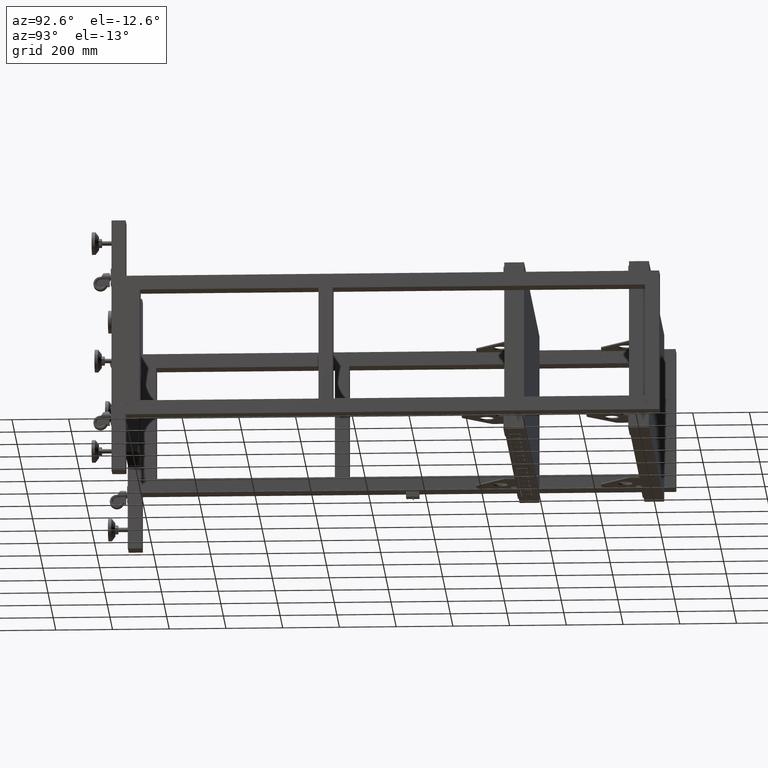
[diagram: clean part render]
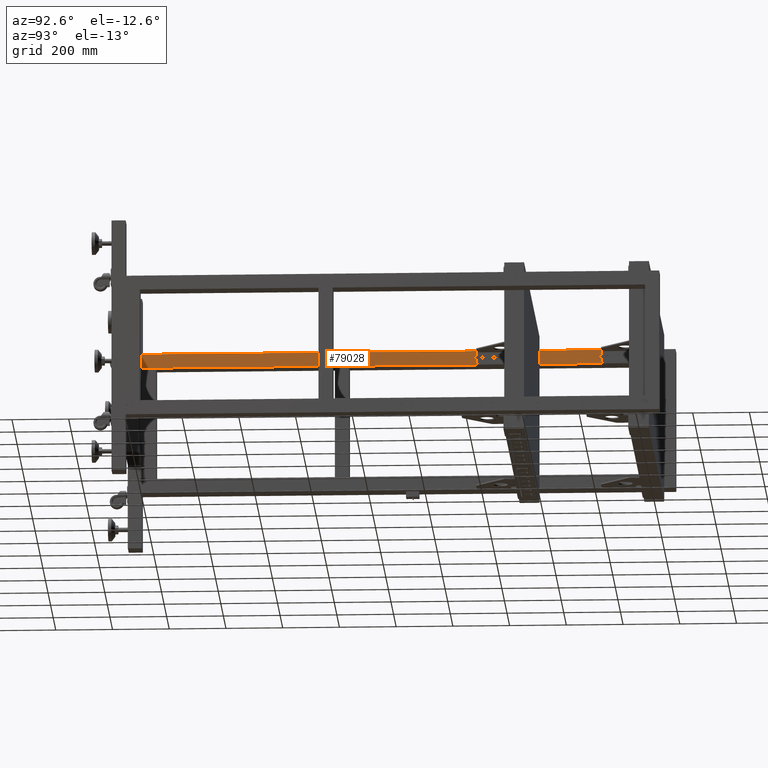
[diagram: same view with one face highlighted and labeled with its STEP entity id]
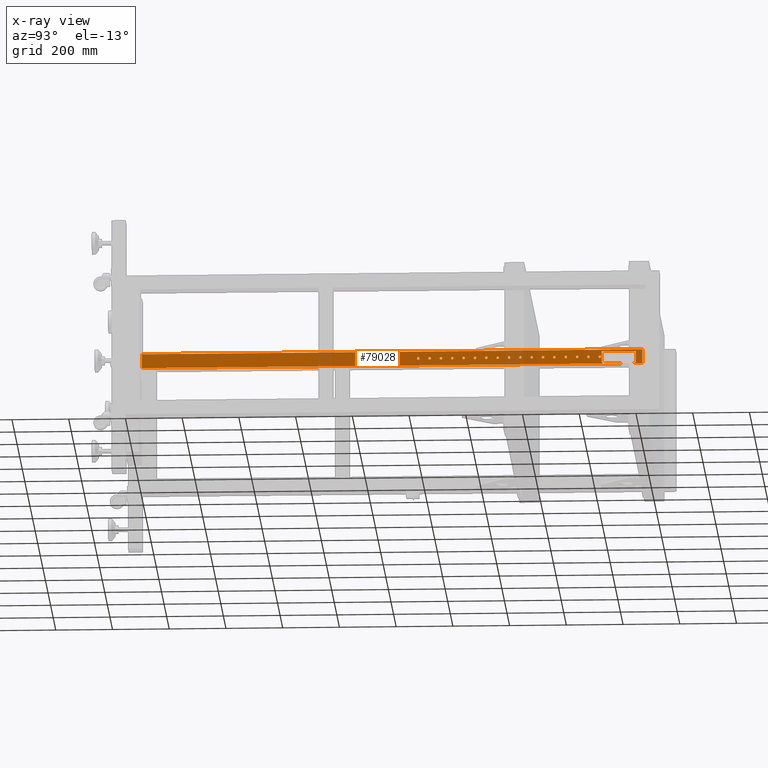
[diagram: x-ray of the same camera — body ghosted, the highlighted face saturated]
A machine part, auxiliary view. The second image highlights one B-rep face of the part: STEP entity #79028.
The next image is the same camera in x-ray: the body ghosted, the highlighted face saturated — about 11% of this face is hidden behind the body in this view.
In plain terms, the highlighted planar face has unit normal (-1, 0, 0).
Its self-contained STEP definition (entity closure, byte-faithful):
#44 = CARTESIAN_POINT ( 'NONE',  ( -1268.172487437185055, 413.9410804020111527, 224.9999999999966178 ) ) ;
#717 = CARTESIAN_POINT ( 'NONE',  ( -1268.172487437185055, 409.4410804020110959, 224.9999999999966178 ) ) ;
#1344 = EDGE_CURVE ( 'NONE', #4165, #57992, #56593, .T. ) ;
#1881 = DIRECTION ( 'NONE',  ( -1.000000000000000000, -2.775557561562891295E-29, -3.491776919586969661E-17 ) ) ;
#2563 = VERTEX_POINT ( 'NONE', #47745 ) ;
#2772 = FACE_BOUND ( 'NONE', #29668, .T. ) ;
#2950 = ORIENTED_EDGE ( 'NONE', *, *, #76326, .F. ) ;
#3054 = DIRECTION ( 'NONE',  ( 2.800000000000000233E-29, -1.000000000000000000, -7.000000000000000150E-15 ) ) ;
#3377 = EDGE_CURVE ( 'NONE', #57992, #4165, #22150, .T. ) ;
#3403 = CARTESIAN_POINT ( 'NONE',  ( -1268.172487437185055, 919.4410804020111527, 199.9999999999999716 ) ) ;
#3560 = ORIENTED_EDGE ( 'NONE', *, *, #1344, .F. ) ;
#3932 = EDGE_CURVE ( 'NONE', #33515, #55629, #71655, .T. ) ;
#4165 = VERTEX_POINT ( 'NONE', #44 ) ;
#4226 = CARTESIAN_POINT ( 'NONE',  ( -1268.172487437185055, 129.4410804020110675, 224.9999999999946851 ) ) ;
#4278 = ORIENTED_EDGE ( 'NONE', *, *, #63627, .F. ) ;
#4321 = CARTESIAN_POINT ( 'NONE',  ( -1268.172487437185055, 604.9410804020111527, 224.9999999999980389 ) ) ;
#4746 = EDGE_LOOP ( 'NONE', ( #50703, #30777 ) ) ;
#4794 = EDGE_CURVE ( 'NONE', #14816, #24119, #32644, .T. ) ;
#4813 = CIRCLE ( 'NONE', #8696, 4.500000000000059508 ) ;
#5435 = EDGE_CURVE ( 'NONE', #28550, #67123, #45005, .T. ) ;
#5567 = DIRECTION ( 'NONE',  ( 1.000000000000000000, 0.000000000000000000, 0.000000000000000000 ) ) ;
#5617 = AXIS2_PLACEMENT_3D ( 'NONE', #15981, #53368, #70472 ) ;
#5944 = DIRECTION ( 'NONE',  ( 0.000000000000000000, 1.000000000000000000, 0.000000000000000000 ) ) ;
#6151 = VERTEX_POINT ( 'NONE', #57142 ) ;
#6330 = AXIS2_PLACEMENT_3D ( 'NONE', #56457, #45497, #13771 ) ;
#6474 = DIRECTION ( 'NONE',  ( 1.000000000000000000, 0.000000000000000000, 0.000000000000000000 ) ) ;
#6480 = CIRCLE ( 'NONE', #51874, 4.499999999999948486 ) ;
#6986 = EDGE_CURVE ( 'NONE', #52578, #59055, #51680, .T. ) ;
#7015 = CARTESIAN_POINT ( 'NONE',  ( -1268.172487437185055, 529.4410804020111527, 224.9999999999974705 ) ) ;
#7682 = PLANE ( 'NONE',  #53473 ) ;
#7886 = CARTESIAN_POINT ( 'NONE',  ( -1268.172487437185055, -844.5589195979888473, 199.9999999999999716 ) ) ;
#7891 = DIRECTION ( 'NONE',  ( 1.000000000000000000, 0.000000000000000000, 0.000000000000000000 ) ) ;
#8087 = LINE ( 'NONE', #27148, #45001 ) ;
#8178 = CARTESIAN_POINT ( 'NONE',  ( -1268.172487437185964, 896.9410804020110390, 243.9999999999992895 ) ) ;
#8213 = EDGE_CURVE ( 'NONE', #45682, #51390, #59075, .T. ) ;
#8460 = FACE_BOUND ( 'NONE', #60586, .T. ) ;
#8599 = CARTESIAN_POINT ( 'NONE',  ( -1268.172487437185055, 329.4410804020111527, 224.9999999999960778 ) ) ;
#8628 = ORIENTED_EDGE ( 'NONE', *, *, #15051, .F. ) ;
#8669 = AXIS2_PLACEMENT_3D ( 'NONE', #52828, #76832, #14668 ) ;
#8696 = AXIS2_PLACEMENT_3D ( 'NONE', #41777, #48263, #19275 ) ;
#8787 = DIRECTION ( 'NONE',  ( 0.000000000000000000, 0.000000000000000000, 1.000000000000000000 ) ) ;
#8802 = VECTOR ( 'NONE', #3054, 1000.000000000000000 ) ;
#8864 = DIRECTION ( 'NONE',  ( 0.000000000000000000, -1.000000000000000000, 0.000000000000000000 ) ) ;
#8920 = ORIENTED_EDGE ( 'NONE', *, *, #16445, .F. ) ;
#8952 = CIRCLE ( 'NONE', #46586, 7.000000000000006217 ) ;
#9092 = EDGE_CURVE ( 'NONE', #25885, #6151, #78422, .T. ) ;
#9255 = CARTESIAN_POINT ( 'NONE',  ( -1268.172487437185055, 289.4410804020110959, 224.9999999999957936 ) ) ;
#9292 = CARTESIAN_POINT ( 'NONE',  ( -1268.172487437185055, 533.9410804020110390, 224.9999999999974705 ) ) ;
#9403 = CARTESIAN_POINT ( 'NONE',  ( -1268.172487437185055, 333.9410804020110959, 224.9999999999960778 ) ) ;
#9841 = ORIENTED_EDGE ( 'NONE', *, *, #57318, .F. ) ;
#10078 = CARTESIAN_POINT ( 'NONE',  ( -1268.172487437185055, 289.4410804020110959, 224.9999999999957936 ) ) ;
#10115 = EDGE_CURVE ( 'NONE', #16899, #51390, #19555, .T. ) ;
#10298 = EDGE_CURVE ( 'NONE', #61943, #27616, #47453, .T. ) ;
#11155 = ORIENTED_EDGE ( 'NONE', *, *, #23784, .F. ) ;
#11483 = DIRECTION ( 'NONE',  ( 1.000000000000000000, 0.000000000000000000, 0.000000000000000000 ) ) ;
#11598 = EDGE_CURVE ( 'NONE', #24429, #45682, #39204, .T. ) ;
#11814 = ORIENTED_EDGE ( 'NONE', *, *, #40419, .F. ) ;
#12044 = ORIENTED_EDGE ( 'NONE', *, *, #63148, .F. ) ;
#12116 = DIRECTION ( 'NONE',  ( 0.000000000000000000, 1.000000000000000000, 0.000000000000000000 ) ) ;
#12169 = EDGE_CURVE ( 'NONE', #74881, #49255, #72355, .T. ) ;
#12260 = LINE ( 'NONE', #61839, #21620 ) ;
#12495 = VERTEX_POINT ( 'NONE', #29930 ) ;
#13118 = DIRECTION ( 'NONE',  ( 1.000000000000000000, 0.000000000000000000, 0.000000000000000000 ) ) ;
#13362 = EDGE_CURVE ( 'NONE', #51629, #43197, #47564, .T. ) ;
#13629 = ORIENTED_EDGE ( 'NONE', *, *, #16343, .F. ) ;
#13635 = VERTEX_POINT ( 'NONE', #65399 ) ;
#13727 = CARTESIAN_POINT ( 'NONE',  ( -1268.172487437185055, 293.9410804020111527, 224.9999999999957936 ) ) ;
#13742 = CARTESIAN_POINT ( 'NONE',  ( -1268.172487437185964, 775.9410804020110390, 243.9899999999981901 ) ) ;
#13747 = FACE_BOUND ( 'NONE', #53026, .T. ) ;
#13771 = DIRECTION ( 'NONE',  ( 0.000000000000000000, 1.000000000000000000, 0.000000000000000000 ) ) ;
#14168 = FACE_BOUND ( 'NONE', #26388, .T. ) ;
#14437 = CARTESIAN_POINT ( 'NONE',  ( -1268.172487437185055, 573.9410804020110390, 224.9999999999977547 ) ) ;
#14570 = DIRECTION ( 'NONE',  ( -1.000000000000000000, 0.000000000000000000, 0.000000000000000000 ) ) ;
#14667 = LINE ( 'NONE', #8178, #25772 ) ;
#14668 = DIRECTION ( 'NONE',  ( 0.000000000000000000, 1.000000000000000000, 0.000000000000000000 ) ) ;
#14690 = ORIENTED_EDGE ( 'NONE', *, *, #54160, .F. ) ;
#14750 = ORIENTED_EDGE ( 'NONE', *, *, #3932, .F. ) ;
#14789 = DIRECTION ( 'NONE',  ( 0.000000000000000000, 1.000000000000000000, 0.000000000000000000 ) ) ;
#14816 = VERTEX_POINT ( 'NONE', #78027 ) ;
#14942 = DIRECTION ( 'NONE',  ( 2.800000000000000233E-29, -1.000000000000000000, -7.000000000000000150E-15 ) ) ;
#15044 = AXIS2_PLACEMENT_3D ( 'NONE', #9255, #44886, #65176 ) ;
#15051 = EDGE_CURVE ( 'NONE', #43793, #45571, #33652, .T. ) ;
#15464 = DIRECTION ( 'NONE',  ( -4.498682352102549724E-16, -7.000000000000000150E-15, 1.000000000000000000 ) ) ;
#15567 = EDGE_CURVE ( 'NONE', #43197, #70130, #24060, .T. ) ;
#15574 = EDGE_CURVE ( 'NONE', #49255, #74881, #71111, .T. ) ;
#15682 = EDGE_LOOP ( 'NONE', ( #71963, #37117 ) ) ;
#15981 = CARTESIAN_POINT ( 'NONE',  ( -1268.172487437185055, 449.4410804020111527, 224.9999999999969020 ) ) ;
#16343 = EDGE_CURVE ( 'NONE', #24429, #16899, #8087, .T. ) ;
#16445 = EDGE_CURVE ( 'NONE', #68324, #17261, #73670, .T. ) ;
#16899 = VERTEX_POINT ( 'NONE', #22162 ) ;
#16983 = AXIS2_PLACEMENT_3D ( 'NONE', #21969, #21155, #71931 ) ;
#16992 = EDGE_CURVE ( 'NONE', #6151, #25885, #30916, .T. ) ;
#17174 = EDGE_CURVE ( 'NONE', #68799, #58550, #21772, .T. ) ;
#17261 = VERTEX_POINT ( 'NONE', #78142 ) ;
#17621 = ORIENTED_EDGE ( 'NONE', *, *, #5435, .F. ) ;
#17971 = DIRECTION ( 'NONE',  ( 0.000000000000000000, 1.000000000000000000, 0.000000000000000000 ) ) ;
#18081 = DIRECTION ( 'NONE',  ( 0.000000000000000000, 1.000000000000000000, 0.000000000000000000 ) ) ;
#18087 = AXIS2_PLACEMENT_3D ( 'NONE', #20720, #57689, #45524 ) ;
#18262 = CIRCLE ( 'NONE', #18087, 4.499999999999948486 ) ;
#18455 = CARTESIAN_POINT ( 'NONE',  ( -1268.172487437185055, 569.4410804020111527, 224.9999999999977547 ) ) ;
#18615 = CARTESIAN_POINT ( 'NONE',  ( -1268.172487437185055, 209.4410804020111527, 224.9999999999952252 ) ) ;
#18874 = CIRCLE ( 'NONE', #64262, 4.499999999999948486 ) ;
#19084 = EDGE_CURVE ( 'NONE', #47775, #63916, #20705, .T. ) ;
#19149 = CIRCLE ( 'NONE', #58127, 4.499999999999948486 ) ;
#19275 = DIRECTION ( 'NONE',  ( 0.000000000000000000, 1.000000000000000000, 0.000000000000000000 ) ) ;
#19555 = LINE ( 'NONE', #63004, #29235 ) ;
#19599 = CIRCLE ( 'NONE', #16983, 4.499999999999948486 ) ;
#19782 = DIRECTION ( 'NONE',  ( 0.000000000000000000, 1.000000000000000000, 0.000000000000000000 ) ) ;
#19815 = AXIS2_PLACEMENT_3D ( 'NONE', #10078, #60864, #47867 ) ;
#20278 = ORIENTED_EDGE ( 'NONE', *, *, #15567, .T. ) ;
#20661 = FACE_BOUND ( 'NONE', #67008, .T. ) ;
#20705 = CIRCLE ( 'NONE', #28485, 4.499999999999948486 ) ;
#20720 = CARTESIAN_POINT ( 'NONE',  ( -1268.172487437185055, 689.4410804020111527, 224.9999999999985789 ) ) ;
#20852 = ORIENTED_EDGE ( 'NONE', *, *, #10115, .F. ) ;
#21055 = FACE_BOUND ( 'NONE', #35141, .T. ) ;
#21155 = DIRECTION ( 'NONE',  ( 1.000000000000000000, 0.000000000000000000, 0.000000000000000000 ) ) ;
#21185 = DIRECTION ( 'NONE',  ( 1.000000000000000000, 0.000000000000000000, 0.000000000000000000 ) ) ;
#21229 = AXIS2_PLACEMENT_3D ( 'NONE', #26689, #51490, #50310 ) ;
#21332 = CARTESIAN_POINT ( 'NONE',  ( -1268.172487437185055, 564.9410804020111527, 224.9999999999977547 ) ) ;
#21450 = AXIS2_PLACEMENT_3D ( 'NONE', #61945, #79436, #18081 ) ;
#21518 = EDGE_LOOP ( 'NONE', ( #17621, #11155 ) ) ;
#21620 = VECTOR ( 'NONE', #15464, 1000.000000000000000 ) ;
#21736 = DIRECTION ( 'NONE',  ( 1.000000000000000000, 0.000000000000000000, 0.000000000000000000 ) ) ;
#21772 = CIRCLE ( 'NONE', #72431, 4.500000000000059508 ) ;
#21969 = CARTESIAN_POINT ( 'NONE',  ( -1268.172487437185055, 529.4410804020111527, 224.9999999999974705 ) ) ;
#21970 = CARTESIAN_POINT ( 'NONE',  ( -1268.172487437185964, 775.9410804020112664, 207.9999999999981526 ) ) ;
#21993 = DIRECTION ( 'NONE',  ( 0.000000000000000000, 1.000000000000000000, 0.000000000000000000 ) ) ;
#22150 = CIRCLE ( 'NONE', #68885, 4.500000000000059508 ) ;
#22162 = CARTESIAN_POINT ( 'NONE',  ( -1268.172487437185055, -844.5589195979888473, 249.9999999999999716 ) ) ;
#23146 = CARTESIAN_POINT ( 'NONE',  ( -1268.172487437185055, 653.9410804020111527, 224.9999999999983231 ) ) ;
#23671 = CARTESIAN_POINT ( 'NONE',  ( -1268.172487437185055, 204.9410804020110959, 224.9999999999952252 ) ) ;
#23784 = EDGE_CURVE ( 'NONE', #67123, #28550, #57970, .T. ) ;
#23880 = CARTESIAN_POINT ( 'NONE',  ( -1268.172487437185055, 919.4410804020111527, 249.9999999999999716 ) ) ;
#24030 = ORIENTED_EDGE ( 'NONE', *, *, #4794, .F. ) ;
#24060 = LINE ( 'NONE', #77819, #8802 ) ;
#24119 = VERTEX_POINT ( 'NONE', #40174 ) ;
#24137 = DIRECTION ( 'NONE',  ( 0.000000000000000000, 1.000000000000000000, 0.000000000000000000 ) ) ;
#24429 = VERTEX_POINT ( 'NONE', #7886 ) ;
#24611 = AXIS2_PLACEMENT_3D ( 'NONE', #28484, #78848, #51757 ) ;
#25017 = DIRECTION ( 'NONE',  ( 1.000000000000000000, 0.000000000000000000, 0.000000000000000000 ) ) ;
#25245 = CARTESIAN_POINT ( 'NONE',  ( -1268.172487437185055, 449.4410804020111527, 224.9999999999969020 ) ) ;
#25460 = EDGE_CURVE ( 'NONE', #27616, #61943, #54866, .T. ) ;
#25604 = CARTESIAN_POINT ( 'NONE',  ( -1268.172487437185055, 284.9410804020111527, 224.9999999999957936 ) ) ;
#25772 = VECTOR ( 'NONE', #58144, 1000.000000000000000 ) ;
#25885 = VERTEX_POINT ( 'NONE', #56235 ) ;
#26155 = DIRECTION ( 'NONE',  ( 1.000000000000000000, 0.000000000000000000, 0.000000000000000000 ) ) ;
#26177 = EDGE_CURVE ( 'NONE', #34917, #2563, #19149, .T. ) ;
#26388 = EDGE_LOOP ( 'NONE', ( #34247, #27514 ) ) ;
#26600 = EDGE_LOOP ( 'NONE', ( #9841, #74910 ) ) ;
#26689 = CARTESIAN_POINT ( 'NONE',  ( -1268.172487437185055, 489.4410804020110959, 224.9999999999971863 ) ) ;
#26707 = DIRECTION ( 'NONE',  ( 0.000000000000000000, 1.000000000000000000, 0.000000000000000000 ) ) ;
#26726 = FACE_BOUND ( 'NONE', #4746, .T. ) ;
#26956 = DIRECTION ( 'NONE',  ( 0.000000000000000000, 1.000000000000000000, 0.000000000000000000 ) ) ;
#27148 = CARTESIAN_POINT ( 'NONE',  ( -1268.172487437185055, -844.5589195979888473, 199.9999999999999716 ) ) ;
#27165 = CARTESIAN_POINT ( 'NONE',  ( -1268.172487437185737, 782.9410804020113801, 200.9999999999982094 ) ) ;
#27290 = DIRECTION ( 'NONE',  ( 0.000000000000000000, 1.000000000000000000, 0.000000000000000000 ) ) ;
#27340 = ORIENTED_EDGE ( 'NONE', *, *, #13362, .T. ) ;
#27514 = ORIENTED_EDGE ( 'NONE', *, *, #60612, .F. ) ;
#27616 = VERTEX_POINT ( 'NONE', #25604 ) ;
#28002 = ORIENTED_EDGE ( 'NONE', *, *, #56824, .F. ) ;
#28072 = AXIS2_PLACEMENT_3D ( 'NONE', #73198, #42337, #61020 ) ;
#28157 = CARTESIAN_POINT ( 'NONE',  ( -1268.172487437185055, 369.4410804020110959, 224.9999999999963336 ) ) ;
#28340 = DIRECTION ( 'NONE',  ( 1.000000000000000000, 0.000000000000000000, 0.000000000000000000 ) ) ;
#28351 = DIRECTION ( 'NONE',  ( 0.000000000000000000, 1.000000000000000000, 0.000000000000000000 ) ) ;
#28418 = CARTESIAN_POINT ( 'NONE',  ( -1268.172487437185055, 489.4410804020110959, 224.9999999999971863 ) ) ;
#28484 = CARTESIAN_POINT ( 'NONE',  ( -1268.172487437185055, 649.4410804020110390, 224.9999999999983231 ) ) ;
#28485 = AXIS2_PLACEMENT_3D ( 'NONE', #67729, #29093, #5944 ) ;
#28550 = VERTEX_POINT ( 'NONE', #14437 ) ;
#28619 = ORIENTED_EDGE ( 'NONE', *, *, #12169, .F. ) ;
#28685 = AXIS2_PLACEMENT_3D ( 'NONE', #50672, #75458, #19782 ) ;
#28773 = ORIENTED_EDGE ( 'NONE', *, *, #15574, .F. ) ;
#28888 = CARTESIAN_POINT ( 'NONE',  ( -1268.172487437185055, 324.9410804020110959, 224.9999999999960778 ) ) ;
#29093 = DIRECTION ( 'NONE',  ( 1.000000000000000000, 0.000000000000000000, 0.000000000000000000 ) ) ;
#29235 = VECTOR ( 'NONE', #70618, 1000.000000000000000 ) ;
#29668 = EDGE_LOOP ( 'NONE', ( #20278, #52304, #48148, #8628, #31409, #27340 ) ) ;
#29930 = CARTESIAN_POINT ( 'NONE',  ( -1268.172487437185055, 613.9410804020111527, 224.9999999999980389 ) ) ;
#30422 = CARTESIAN_POINT ( 'NONE',  ( -1268.172487437185964, 775.9410804020110390, 243.9899999999981901 ) ) ;
#30735 = CARTESIAN_POINT ( 'NONE',  ( -1268.172487437185055, 169.4410804020111243, 224.9999999999949409 ) ) ;
#30777 = ORIENTED_EDGE ( 'NONE', *, *, #16992, .F. ) ;
#30842 = AXIS2_PLACEMENT_3D ( 'NONE', #18615, #43421, #74688 ) ;
#30916 = CIRCLE ( 'NONE', #65866, 4.500000000000059508 ) ;
#30951 = CARTESIAN_POINT ( 'NONE',  ( -1268.172487437185055, 896.9410804020110390, 243.9899999999990143 ) ) ;
#31126 = CARTESIAN_POINT ( 'NONE',  ( -1268.172487437185055, 129.4410804020110675, 224.9999999999946851 ) ) ;
#31409 = ORIENTED_EDGE ( 'NONE', *, *, #49411, .T. ) ;
#31501 = CIRCLE ( 'NONE', #43227, 4.500000000000003553 ) ;
#31863 = CIRCLE ( 'NONE', #21450, 4.499999999999948486 ) ;
#32403 = CARTESIAN_POINT ( 'NONE',  ( -1268.172487437185055, 404.9410804020111527, 224.9999999999966178 ) ) ;
#32644 = CIRCLE ( 'NONE', #43061, 4.499999999999948486 ) ;
#32850 = AXIS2_PLACEMENT_3D ( 'NONE', #31126, #25017, #49797 ) ;
#33254 = EDGE_CURVE ( 'NONE', #34613, #45571, #12260, .T. ) ;
#33512 = VERTEX_POINT ( 'NONE', #47526 ) ;
#33515 = VERTEX_POINT ( 'NONE', #72328 ) ;
#33652 = LINE ( 'NONE', #13742, #57735 ) ;
#33793 = EDGE_CURVE ( 'NONE', #59055, #52578, #4813, .T. ) ;
#33807 = DIRECTION ( 'NONE',  ( 1.000000000000000000, 0.000000000000000000, 0.000000000000000000 ) ) ;
#34247 = ORIENTED_EDGE ( 'NONE', *, *, #42915, .F. ) ;
#34496 = EDGE_LOOP ( 'NONE', ( #36015, #44766 ) ) ;
#34600 = AXIS2_PLACEMENT_3D ( 'NONE', #18455, #63824, #24137 ) ;
#34613 = VERTEX_POINT ( 'NONE', #21970 ) ;
#34917 = VERTEX_POINT ( 'NONE', #9292 ) ;
#35141 = EDGE_LOOP ( 'NONE', ( #46112, #38004 ) ) ;
#35222 = CARTESIAN_POINT ( 'NONE',  ( -1268.172487437185055, 769.4410804020110390, 224.9999999999991473 ) ) ;
#35850 = EDGE_CURVE ( 'NONE', #63916, #47775, #64790, .T. ) ;
#36015 = ORIENTED_EDGE ( 'NONE', *, *, #33793, .F. ) ;
#36550 = ORIENTED_EDGE ( 'NONE', *, *, #25460, .F. ) ;
#37117 = ORIENTED_EDGE ( 'NONE', *, *, #56425, .F. ) ;
#37587 = CARTESIAN_POINT ( 'NONE',  ( -1268.172487437185055, 169.4410804020111243, 224.9999999999949409 ) ) ;
#37607 = CARTESIAN_POINT ( 'NONE',  ( -1268.172487437185055, 373.9410804020111527, 224.9999999999963336 ) ) ;
#38004 = ORIENTED_EDGE ( 'NONE', *, *, #78548, .F. ) ;
#38499 = CARTESIAN_POINT ( 'NONE',  ( -1268.172487437185055, 253.9410804020111243, 224.9999999999955094 ) ) ;
#38969 = FACE_BOUND ( 'NONE', #63262, .T. ) ;
#39204 = LINE ( 'NONE', #70478, #42461 ) ;
#39290 = ORIENTED_EDGE ( 'NONE', *, *, #11598, .T. ) ;
#40174 = CARTESIAN_POINT ( 'NONE',  ( -1268.172487437185055, 764.9410804020111527, 224.9999999999991473 ) ) ;
#40419 = EDGE_CURVE ( 'NONE', #13635, #54453, #66367, .T. ) ;
#40564 = DIRECTION ( 'NONE',  ( 1.000000000000000000, 0.000000000000000000, 0.000000000000000000 ) ) ;
#40802 = DIRECTION ( 'NONE',  ( 1.000000000000000000, 0.000000000000000000, 0.000000000000000000 ) ) ;
#40913 = DIRECTION ( 'NONE',  ( 0.000000000000000000, 1.000000000000000000, 0.000000000000000000 ) ) ;
#41777 = CARTESIAN_POINT ( 'NONE',  ( -1268.172487437185055, 329.4410804020111527, 224.9999999999960778 ) ) ;
#42151 = CARTESIAN_POINT ( 'NONE',  ( -1268.172487437185055, 684.9410804020110390, 224.9999999999985789 ) ) ;
#42337 = DIRECTION ( 'NONE',  ( -1.000000000000000000, -2.775557561562891295E-29, -3.491776919586969661E-17 ) ) ;
#42461 = VECTOR ( 'NONE', #14789, 1000.000000000000000 ) ;
#42486 = DIRECTION ( 'NONE',  ( 1.000000000000000000, 0.000000000000000000, 0.000000000000000000 ) ) ;
#42594 = AXIS2_PLACEMENT_3D ( 'NONE', #54549, #21736, #17971 ) ;
#42740 = VERTEX_POINT ( 'NONE', #58091 ) ;
#42915 = EDGE_CURVE ( 'NONE', #68644, #42740, #31501, .T. ) ;
#43021 = AXIS2_PLACEMENT_3D ( 'NONE', #4226, #40802, #51792 ) ;
#43061 = AXIS2_PLACEMENT_3D ( 'NONE', #35222, #5567, #40913 ) ;
#43197 = VERTEX_POINT ( 'NONE', #56018 ) ;
#43227 = AXIS2_PLACEMENT_3D ( 'NONE', #28418, #71879, #65790 ) ;
#43421 = DIRECTION ( 'NONE',  ( 1.000000000000000000, 0.000000000000000000, 0.000000000000000000 ) ) ;
#43689 = CIRCLE ( 'NONE', #80047, 4.500000000000059508 ) ;
#43793 = VERTEX_POINT ( 'NONE', #30951 ) ;
#44342 = ORIENTED_EDGE ( 'NONE', *, *, #10298, .F. ) ;
#44659 = FACE_BOUND ( 'NONE', #65814, .T. ) ;
#44766 = ORIENTED_EDGE ( 'NONE', *, *, #6986, .F. ) ;
#44886 = DIRECTION ( 'NONE',  ( 1.000000000000000000, 0.000000000000000000, 0.000000000000000000 ) ) ;
#45001 = VECTOR ( 'NONE', #77123, 1000.000000000000000 ) ;
#45005 = CIRCLE ( 'NONE', #34600, 4.499999999999948486 ) ;
#45469 = FACE_BOUND ( 'NONE', #76387, .T. ) ;
#45497 = DIRECTION ( 'NONE',  ( 1.000000000000000000, 0.000000000000000000, 0.000000000000000000 ) ) ;
#45524 = DIRECTION ( 'NONE',  ( 0.000000000000000000, 1.000000000000000000, 0.000000000000000000 ) ) ;
#45571 = VERTEX_POINT ( 'NONE', #30422 ) ;
#45682 = VERTEX_POINT ( 'NONE', #58807 ) ;
#45859 = FACE_BOUND ( 'NONE', #65010, .T. ) ;
#46112 = ORIENTED_EDGE ( 'NONE', *, *, #59886, .F. ) ;
#46216 = ORIENTED_EDGE ( 'NONE', *, *, #46878, .F. ) ;
#46586 = AXIS2_PLACEMENT_3D ( 'NONE', #68982, #1881, #8787 ) ;
#46695 = ORIENTED_EDGE ( 'NONE', *, *, #35850, .F. ) ;
#46878 = EDGE_CURVE ( 'NONE', #17261, #68324, #18874, .T. ) ;
#46985 = AXIS2_PLACEMENT_3D ( 'NONE', #77679, #21185, #78088 ) ;
#47105 = CIRCLE ( 'NONE', #32850, 4.500000000000059508 ) ;
#47249 = ORIENTED_EDGE ( 'NONE', *, *, #8213, .T. ) ;
#47410 = CARTESIAN_POINT ( 'NONE',  ( -1268.172487437185055, 249.4410804020110675, 224.9999999999955094 ) ) ;
#47453 = CIRCLE ( 'NONE', #15044, 4.500000000000059508 ) ;
#47526 = CARTESIAN_POINT ( 'NONE',  ( -1268.172487437185055, 444.9410804020111527, 224.9999999999969020 ) ) ;
#47564 = CIRCLE ( 'NONE', #28072, 7.000000000000006217 ) ;
#47745 = CARTESIAN_POINT ( 'NONE',  ( -1268.172487437185055, 524.9410804020111527, 224.9999999999974705 ) ) ;
#47775 = VERTEX_POINT ( 'NONE', #23146 ) ;
#47867 = DIRECTION ( 'NONE',  ( 0.000000000000000000, 1.000000000000000000, 0.000000000000000000 ) ) ;
#48008 = CIRCLE ( 'NONE', #58390, 4.500000000000059508 ) ;
#48148 = ORIENTED_EDGE ( 'NONE', *, *, #33254, .T. ) ;
#48262 = CARTESIAN_POINT ( 'NONE',  ( -1268.172487437185055, 729.4410804020110390, 224.9999999999988631 ) ) ;
#48263 = DIRECTION ( 'NONE',  ( 1.000000000000000000, 0.000000000000000000, 0.000000000000000000 ) ) ;
#48665 = CARTESIAN_POINT ( 'NONE',  ( -1268.172487437185055, 133.9410804020111243, 224.9999999999946851 ) ) ;
#48848 = CARTESIAN_POINT ( 'NONE',  ( -1268.172487437185055, 409.4410804020110959, 224.9999999999966178 ) ) ;
#49130 = CIRCLE ( 'NONE', #6330, 4.499999999999948486 ) ;
#49255 = VERTEX_POINT ( 'NONE', #23671 ) ;
#49411 = EDGE_CURVE ( 'NONE', #43793, #51629, #14667, .T. ) ;
#49483 = CIRCLE ( 'NONE', #28685, 4.499999999999948486 ) ;
#49797 = DIRECTION ( 'NONE',  ( 0.000000000000000000, 1.000000000000000000, 0.000000000000000000 ) ) ;
#50031 = DIRECTION ( 'NONE',  ( 1.000000000000000000, 0.000000000000000000, 0.000000000000000000 ) ) ;
#50310 = DIRECTION ( 'NONE',  ( 0.000000000000000000, 1.000000000000000000, 0.000000000000000000 ) ) ;
#50672 = CARTESIAN_POINT ( 'NONE',  ( -1268.172487437185055, 609.4410804020111527, 224.9999999999980389 ) ) ;
#50703 = ORIENTED_EDGE ( 'NONE', *, *, #9092, .F. ) ;
#50713 = EDGE_CURVE ( 'NONE', #63207, #71184, #6480, .T. ) ;
#50949 = DIRECTION ( 'NONE',  ( 0.000000000000000000, 1.000000000000000000, 0.000000000000000000 ) ) ;
#51369 = ORIENTED_EDGE ( 'NONE', *, *, #79863, .F. ) ;
#51390 = VERTEX_POINT ( 'NONE', #23880 ) ;
#51490 = DIRECTION ( 'NONE',  ( 1.000000000000000000, 0.000000000000000000, 0.000000000000000000 ) ) ;
#51528 = FACE_BOUND ( 'NONE', #66156, .T. ) ;
#51555 = EDGE_CURVE ( 'NONE', #70130, #34613, #8952, .T. ) ;
#51560 = CARTESIAN_POINT ( 'NONE',  ( -1268.172487437185055, 693.9410804020110390, 224.9999999999985789 ) ) ;
#51629 = VERTEX_POINT ( 'NONE', #77432 ) ;
#51680 = CIRCLE ( 'NONE', #80256, 4.500000000000059508 ) ;
#51757 = DIRECTION ( 'NONE',  ( 0.000000000000000000, 1.000000000000000000, 0.000000000000000000 ) ) ;
#51792 = DIRECTION ( 'NONE',  ( 0.000000000000000000, 1.000000000000000000, 0.000000000000000000 ) ) ;
#51874 = AXIS2_PLACEMENT_3D ( 'NONE', #75737, #7891, #56264 ) ;
#52132 = CARTESIAN_POINT ( 'NONE',  ( -1268.172487437185055, 644.9410804020110390, 224.9999999999983231 ) ) ;
#52304 = ORIENTED_EDGE ( 'NONE', *, *, #51555, .T. ) ;
#52578 = VERTEX_POINT ( 'NONE', #28888 ) ;
#52713 = DIRECTION ( 'NONE',  ( 0.000000000000000000, 1.000000000000000000, 0.000000000000000000 ) ) ;
#52828 = CARTESIAN_POINT ( 'NONE',  ( -1268.172487437185055, 569.4410804020111527, 224.9999999999977547 ) ) ;
#53026 = EDGE_LOOP ( 'NONE', ( #12044, #14750 ) ) ;
#53368 = DIRECTION ( 'NONE',  ( 1.000000000000000000, 0.000000000000000000, 0.000000000000000000 ) ) ;
#53473 = AXIS2_PLACEMENT_3D ( 'NONE', #77119, #14570, #8864 ) ;
#53630 = CARTESIAN_POINT ( 'NONE',  ( -1268.172487437185055, 493.9410804020110959, 224.9999999999971863 ) ) ;
#54160 = EDGE_CURVE ( 'NONE', #24119, #14816, #49130, .T. ) ;
#54453 = VERTEX_POINT ( 'NONE', #48665 ) ;
#54500 = DIRECTION ( 'NONE',  ( 0.000000000000000000, 0.000000000000000000, 1.000000000000000000 ) ) ;
#54549 = CARTESIAN_POINT ( 'NONE',  ( -1268.172487437185055, 209.4410804020111527, 224.9999999999952252 ) ) ;
#54866 = CIRCLE ( 'NONE', #19815, 4.500000000000059508 ) ;
#55515 = DIRECTION ( 'NONE',  ( 0.000000000000000000, 1.000000000000000000, 0.000000000000000000 ) ) ;
#55629 = VERTEX_POINT ( 'NONE', #38499 ) ;
#56018 = CARTESIAN_POINT ( 'NONE',  ( -1268.172487437185737, 889.9410804020113801, 200.9999999999989484 ) ) ;
#56029 = CARTESIAN_POINT ( 'NONE',  ( -1268.172487437185055, 729.4410804020110390, 224.9999999999988631 ) ) ;
#56235 = CARTESIAN_POINT ( 'NONE',  ( -1268.172487437185055, 173.9410804020110675, 224.9999999999949409 ) ) ;
#56249 = CIRCLE ( 'NONE', #5617, 4.499999999999948486 ) ;
#56264 = DIRECTION ( 'NONE',  ( 0.000000000000000000, 1.000000000000000000, 0.000000000000000000 ) ) ;
#56425 = EDGE_CURVE ( 'NONE', #2563, #34917, #19599, .T. ) ;
#56457 = CARTESIAN_POINT ( 'NONE',  ( -1268.172487437185055, 769.4410804020110390, 224.9999999999991473 ) ) ;
#56593 = CIRCLE ( 'NONE', #66987, 4.500000000000059508 ) ;
#56824 = EDGE_CURVE ( 'NONE', #60896, #12495, #49483, .T. ) ;
#57142 = CARTESIAN_POINT ( 'NONE',  ( -1268.172487437185055, 164.9410804020111527, 224.9999999999949409 ) ) ;
#57252 = FACE_BOUND ( 'NONE', #78628, .T. ) ;
#57318 = EDGE_CURVE ( 'NONE', #58550, #68799, #48008, .T. ) ;
#57633 = FACE_BOUND ( 'NONE', #77365, .T. ) ;
#57689 = DIRECTION ( 'NONE',  ( 1.000000000000000000, 0.000000000000000000, 0.000000000000000000 ) ) ;
#57735 = VECTOR ( 'NONE', #14942, 1000.000000000000000 ) ;
#57970 = CIRCLE ( 'NONE', #8669, 4.499999999999948486 ) ;
#57992 = VERTEX_POINT ( 'NONE', #32403 ) ;
#58091 = CARTESIAN_POINT ( 'NONE',  ( -1268.172487437185055, 484.9410804020110959, 224.9999999999972147 ) ) ;
#58127 = AXIS2_PLACEMENT_3D ( 'NONE', #7015, #13118, #21993 ) ;
#58144 = DIRECTION ( 'NONE',  ( 4.498682352102549724E-16, 7.000000000000000150E-15, -1.000000000000000000 ) ) ;
#58259 = DIRECTION ( 'NONE',  ( 1.000000000000000000, 0.000000000000000000, 0.000000000000000000 ) ) ;
#58317 = EDGE_LOOP ( 'NONE', ( #47249, #20852, #13629, #39290 ) ) ;
#58390 = AXIS2_PLACEMENT_3D ( 'NONE', #28157, #58259, #26956 ) ;
#58447 = FACE_BOUND ( 'NONE', #34496, .T. ) ;
#58550 = VERTEX_POINT ( 'NONE', #37607 ) ;
#58807 = CARTESIAN_POINT ( 'NONE',  ( -1268.172487437185055, 919.4410804020135402, 199.9999999999999716 ) ) ;
#59055 = VERTEX_POINT ( 'NONE', #9403 ) ;
#59075 = LINE ( 'NONE', #3403, #80352 ) ;
#59886 = EDGE_CURVE ( 'NONE', #78889, #33512, #56249, .T. ) ;
#60586 = EDGE_LOOP ( 'NONE', ( #44342, #36550 ) ) ;
#60612 = EDGE_CURVE ( 'NONE', #42740, #68644, #64056, .T. ) ;
#60815 = DIRECTION ( 'NONE',  ( 1.000000000000000000, 0.000000000000000000, 0.000000000000000000 ) ) ;
#60864 = DIRECTION ( 'NONE',  ( 1.000000000000000000, 0.000000000000000000, 0.000000000000000000 ) ) ;
#60896 = VERTEX_POINT ( 'NONE', #4321 ) ;
#61020 = DIRECTION ( 'NONE',  ( 0.000000000000000000, 0.000000000000000000, 1.000000000000000000 ) ) ;
#61839 = CARTESIAN_POINT ( 'NONE',  ( -1268.172487437185964, 775.9410804020110390, 243.9999999999984368 ) ) ;
#61943 = VERTEX_POINT ( 'NONE', #13727 ) ;
#61945 = CARTESIAN_POINT ( 'NONE',  ( -1268.172487437185055, 609.4410804020111527, 224.9999999999980389 ) ) ;
#62166 = CARTESIAN_POINT ( 'NONE',  ( -1268.172487437185055, 364.9410804020110959, 224.9999999999963336 ) ) ;
#62379 = DIRECTION ( 'NONE',  ( 0.000000000000000000, 1.000000000000000000, 0.000000000000000000 ) ) ;
#62558 = CARTESIAN_POINT ( 'NONE',  ( -1268.172487437185055, 453.9410804020110959, 224.9999999999969020 ) ) ;
#63004 = CARTESIAN_POINT ( 'NONE',  ( -1268.172487437185055, -844.5589195979888473, 249.9999999999999716 ) ) ;
#63148 = EDGE_CURVE ( 'NONE', #55629, #33515, #43689, .T. ) ;
#63207 = VERTEX_POINT ( 'NONE', #42151 ) ;
#63262 = EDGE_LOOP ( 'NONE', ( #8920, #46216 ) ) ;
#63627 = EDGE_CURVE ( 'NONE', #12495, #60896, #31863, .T. ) ;
#63824 = DIRECTION ( 'NONE',  ( 1.000000000000000000, 0.000000000000000000, 0.000000000000000000 ) ) ;
#63916 = VERTEX_POINT ( 'NONE', #52132 ) ;
#64056 = CIRCLE ( 'NONE', #21229, 4.500000000000003553 ) ;
#64262 = AXIS2_PLACEMENT_3D ( 'NONE', #56029, #6474, #26707 ) ;
#64536 = AXIS2_PLACEMENT_3D ( 'NONE', #48262, #40564, #28351 ) ;
#64790 = CIRCLE ( 'NONE', #24611, 4.499999999999948486 ) ;
#65010 = EDGE_LOOP ( 'NONE', ( #3560, #67405 ) ) ;
#65166 = CIRCLE ( 'NONE', #79443, 4.499999999999948486 ) ;
#65176 = DIRECTION ( 'NONE',  ( 0.000000000000000000, 1.000000000000000000, 0.000000000000000000 ) ) ;
#65399 = CARTESIAN_POINT ( 'NONE',  ( -1268.172487437185055, 124.9410804020111243, 224.9999999999946851 ) ) ;
#65790 = DIRECTION ( 'NONE',  ( 0.000000000000000000, 1.000000000000000000, 0.000000000000000000 ) ) ;
#65814 = EDGE_LOOP ( 'NONE', ( #2950, #77989 ) ) ;
#65866 = AXIS2_PLACEMENT_3D ( 'NONE', #37587, #42486, #62379 ) ;
#66156 = EDGE_LOOP ( 'NONE', ( #24030, #14690 ) ) ;
#66367 = CIRCLE ( 'NONE', #43021, 4.500000000000059508 ) ;
#66987 = AXIS2_PLACEMENT_3D ( 'NONE', #48848, #11483, #80135 ) ;
#67008 = EDGE_LOOP ( 'NONE', ( #51369, #11814 ) ) ;
#67123 = VERTEX_POINT ( 'NONE', #21332 ) ;
#67405 = ORIENTED_EDGE ( 'NONE', *, *, #3377, .F. ) ;
#67729 = CARTESIAN_POINT ( 'NONE',  ( -1268.172487437185055, 649.4410804020110390, 224.9999999999983231 ) ) ;
#67812 = DIRECTION ( 'NONE',  ( 1.000000000000000000, 0.000000000000000000, 0.000000000000000000 ) ) ;
#68324 = VERTEX_POINT ( 'NONE', #79732 ) ;
#68644 = VERTEX_POINT ( 'NONE', #53630 ) ;
#68799 = VERTEX_POINT ( 'NONE', #62166 ) ;
#68885 = AXIS2_PLACEMENT_3D ( 'NONE', #717, #67812, #12116 ) ;
#68982 = CARTESIAN_POINT ( 'NONE',  ( -1268.172487437185964, 782.9410804020111527, 207.9999999999982094 ) ) ;
#69430 = FACE_BOUND ( 'NONE', #21518, .T. ) ;
#69841 = FACE_BOUND ( 'NONE', #15682, .T. ) ;
#70130 = VERTEX_POINT ( 'NONE', #27165 ) ;
#70472 = DIRECTION ( 'NONE',  ( 0.000000000000000000, 1.000000000000000000, 0.000000000000000000 ) ) ;
#70478 = CARTESIAN_POINT ( 'NONE',  ( -1268.172487437185055, -844.5589195979888473, 199.9999999999999716 ) ) ;
#70618 = DIRECTION ( 'NONE',  ( 0.000000000000000000, 1.000000000000000000, 0.000000000000000000 ) ) ;
#70637 = FACE_BOUND ( 'NONE', #26600, .T. ) ;
#71111 = CIRCLE ( 'NONE', #42594, 4.500000000000059508 ) ;
#71184 = VERTEX_POINT ( 'NONE', #51560 ) ;
#71655 = CIRCLE ( 'NONE', #46985, 4.500000000000059508 ) ;
#71879 = DIRECTION ( 'NONE',  ( 1.000000000000000000, 0.000000000000000000, 0.000000000000000000 ) ) ;
#71931 = DIRECTION ( 'NONE',  ( 0.000000000000000000, 1.000000000000000000, 0.000000000000000000 ) ) ;
#71963 = ORIENTED_EDGE ( 'NONE', *, *, #26177, .F. ) ;
#72328 = CARTESIAN_POINT ( 'NONE',  ( -1268.172487437185055, 244.9410804020111243, 224.9999999999955094 ) ) ;
#72355 = CIRCLE ( 'NONE', #30842, 4.500000000000059508 ) ;
#72431 = AXIS2_PLACEMENT_3D ( 'NONE', #75352, #26155, #50949 ) ;
#72675 = CARTESIAN_POINT ( 'NONE',  ( -1268.172487437185055, 213.9410804020110959, 224.9999999999952252 ) ) ;
#73198 = CARTESIAN_POINT ( 'NONE',  ( -1268.172487437185964, 889.9410804020111527, 207.9999999999989768 ) ) ;
#73670 = CIRCLE ( 'NONE', #64536, 4.499999999999948486 ) ;
#74688 = DIRECTION ( 'NONE',  ( 0.000000000000000000, 1.000000000000000000, 0.000000000000000000 ) ) ;
#74829 = DIRECTION ( 'NONE',  ( 0.000000000000000000, 1.000000000000000000, 0.000000000000000000 ) ) ;
#74881 = VERTEX_POINT ( 'NONE', #72675 ) ;
#74910 = ORIENTED_EDGE ( 'NONE', *, *, #17174, .F. ) ;
#75352 = CARTESIAN_POINT ( 'NONE',  ( -1268.172487437185055, 369.4410804020110959, 224.9999999999963336 ) ) ;
#75458 = DIRECTION ( 'NONE',  ( 1.000000000000000000, 0.000000000000000000, 0.000000000000000000 ) ) ;
#75737 = CARTESIAN_POINT ( 'NONE',  ( -1268.172487437185055, 689.4410804020111527, 224.9999999999985789 ) ) ;
#75787 = ORIENTED_EDGE ( 'NONE', *, *, #19084, .F. ) ;
#76326 = EDGE_CURVE ( 'NONE', #71184, #63207, #18262, .T. ) ;
#76387 = EDGE_LOOP ( 'NONE', ( #4278, #28002 ) ) ;
#76736 = FACE_OUTER_BOUND ( 'NONE', #58317, .T. ) ;
#76832 = DIRECTION ( 'NONE',  ( 1.000000000000000000, 0.000000000000000000, 0.000000000000000000 ) ) ;
#77119 = CARTESIAN_POINT ( 'NONE',  ( -1268.172487437185055, -844.5589195979888473, 199.9999999999999716 ) ) ;
#77123 = DIRECTION ( 'NONE',  ( 0.000000000000000000, 0.000000000000000000, 1.000000000000000000 ) ) ;
#77146 = AXIS2_PLACEMENT_3D ( 'NONE', #30735, #60815, #55515 ) ;
#77365 = EDGE_LOOP ( 'NONE', ( #28619, #28773 ) ) ;
#77432 = CARTESIAN_POINT ( 'NONE',  ( -1268.172487437185964, 896.9410804020112664, 207.9999999999990052 ) ) ;
#77679 = CARTESIAN_POINT ( 'NONE',  ( -1268.172487437185055, 249.4410804020110675, 224.9999999999955094 ) ) ;
#77819 = CARTESIAN_POINT ( 'NONE',  ( -1268.172487437185737, 851.4410804020113801, 200.9999999999986926 ) ) ;
#77989 = ORIENTED_EDGE ( 'NONE', *, *, #50713, .F. ) ;
#78027 = CARTESIAN_POINT ( 'NONE',  ( -1268.172487437185055, 773.9410804020111527, 224.9999999999991473 ) ) ;
#78088 = DIRECTION ( 'NONE',  ( 0.000000000000000000, 1.000000000000000000, 0.000000000000000000 ) ) ;
#78142 = CARTESIAN_POINT ( 'NONE',  ( -1268.172487437185055, 724.9410804020111527, 224.9999999999988631 ) ) ;
#78422 = CIRCLE ( 'NONE', #77146, 4.500000000000059508 ) ;
#78548 = EDGE_CURVE ( 'NONE', #33512, #78889, #65166, .T. ) ;
#78628 = EDGE_LOOP ( 'NONE', ( #75787, #46695 ) ) ;
#78848 = DIRECTION ( 'NONE',  ( 1.000000000000000000, 0.000000000000000000, 0.000000000000000000 ) ) ;
#78889 = VERTEX_POINT ( 'NONE', #62558 ) ;
#79028 = ADVANCED_FACE ( 'NONE', ( #76736, #51528, #38969, #44659, #57252, #45469, #69430, #69841, #14168, #21055, #45859, #70637, #58447, #8460, #13747, #57633, #26726, #20661, #2772 ), #7682, .F. ) ;
#79436 = DIRECTION ( 'NONE',  ( 1.000000000000000000, 0.000000000000000000, 0.000000000000000000 ) ) ;
#79443 = AXIS2_PLACEMENT_3D ( 'NONE', #25245, #50031, #74829 ) ;
#79732 = CARTESIAN_POINT ( 'NONE',  ( -1268.172487437185055, 733.9410804020111527, 224.9999999999988631 ) ) ;
#79863 = EDGE_CURVE ( 'NONE', #54453, #13635, #47105, .T. ) ;
#80047 = AXIS2_PLACEMENT_3D ( 'NONE', #47410, #28340, #52713 ) ;
#80135 = DIRECTION ( 'NONE',  ( 0.000000000000000000, 1.000000000000000000, 0.000000000000000000 ) ) ;
#80256 = AXIS2_PLACEMENT_3D ( 'NONE', #8599, #33807, #27290 ) ;
#80352 = VECTOR ( 'NONE', #54500, 1000.000000000000000 ) ;